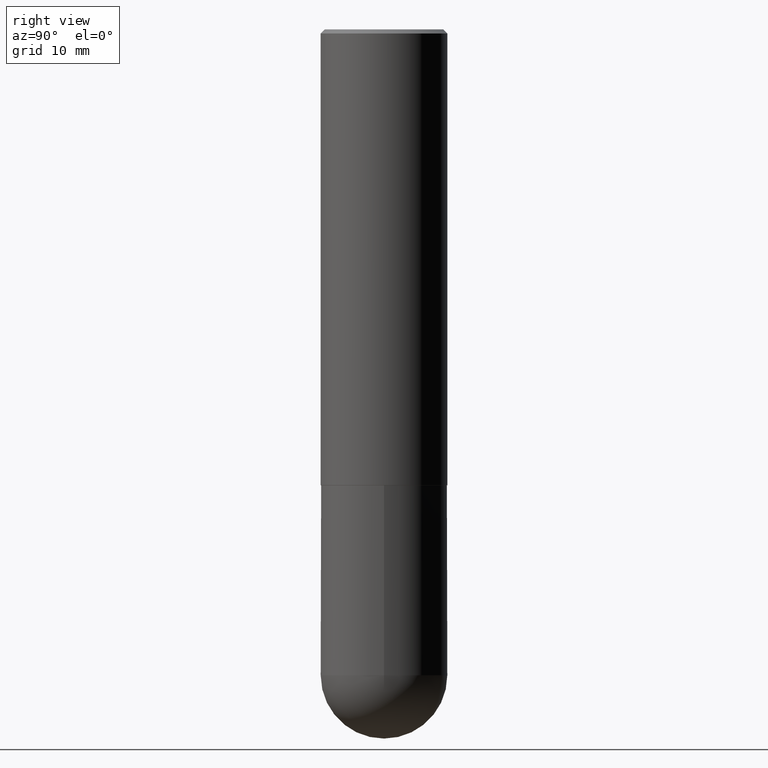
[diagram: clean part render]
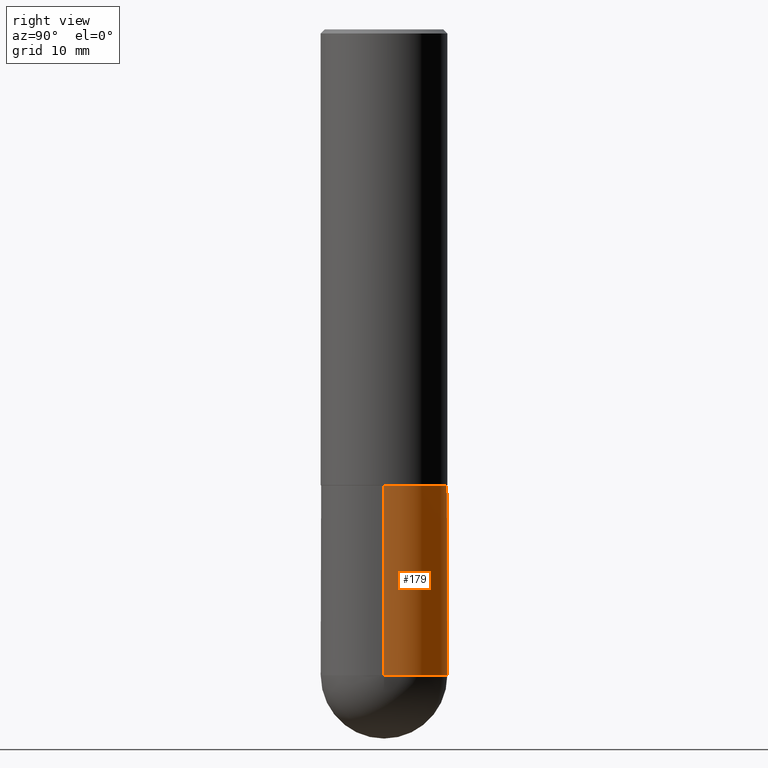
[diagram: same view with one face highlighted and labeled with its STEP entity id]
A machine part, right view. The second image highlights one B-rep face of the part: STEP entity #179.
In plain terms, the highlighted cylindrical surface (partial cylindrical patch) has radius 7.9375 mm, axis along (-0, 0, 1).
Its self-contained STEP definition (entity closure, byte-faithful):
#5 = EDGE_CURVE ( 'NONE', #220, #245, #201, .T. ) ;
#13 = AXIS2_PLACEMENT_3D ( 'NONE', #42, #79, #372 ) ;
#33 = DIRECTION ( 'NONE',  ( 1.000000000000000000, -6.982962677686269077E-15, 0.000000000000000000 ) ) ;
#40 = DIRECTION ( 'NONE',  ( -2.445468806185136877E-29, 3.491481338843145188E-15, 1.000000000000000000 ) ) ;
#42 = CARTESIAN_POINT ( 'NONE',  ( 0.000000000000000000, 0.000000000000000000, 0.000000000000000000 ) ) ;
#44 = LINE ( 'NONE', #180, #388 ) ;
#69 = CIRCLE ( 'NONE', #130, 0.3125000000000000000 ) ;
#72 = VERTEX_POINT ( 'NONE', #166 ) ;
#77 = CARTESIAN_POINT ( 'NONE',  ( 7.794931819715121781E-29, -1.112909676756252622E-14, -3.187500000000000000 ) ) ;
#79 = DIRECTION ( 'NONE',  ( -2.445468806185136597E-29, 3.491481338843145583E-15, 1.000000000000000000 ) ) ;
#81 = EDGE_LOOP ( 'NONE', ( #119, #394, #89, #272, #256 ) ) ;
#89 = ORIENTED_EDGE ( 'NONE', *, *, #285, .F. ) ;
#91 = VERTEX_POINT ( 'NONE', #306 ) ;
#117 = DIRECTION ( 'NONE',  ( -2.445468806185136597E-29, 3.491481338843145583E-15, 1.000000000000000000 ) ) ;
#119 = ORIENTED_EDGE ( 'NONE', *, *, #147, .T. ) ;
#124 = CIRCLE ( 'NONE', #397, 0.3125000000000000000 ) ;
#130 = AXIS2_PLACEMENT_3D ( 'NONE', #412, #286, #248 ) ;
#147 = EDGE_CURVE ( 'NONE', #245, #72, #124, .T. ) ;
#166 = CARTESIAN_POINT ( 'NONE',  ( -0.3125000000000000000, -7.272018840729489255E-15, -3.187500000000000000 ) ) ;
#168 = AXIS2_PLACEMENT_3D ( 'NONE', #381, #117, #33 ) ;
#173 = CYLINDRICAL_SURFACE ( 'NONE', #13, 0.3125000000000000000 ) ;
#179 = ADVANCED_FACE ( 'NONE', ( #401 ), #173, .T. ) ;
#180 = CARTESIAN_POINT ( 'NONE',  ( 0.3125000000000000000, -2.182175836776958347E-15, 1.523805242436230075E-29 ) ) ;
#189 = CARTESIAN_POINT ( 'NONE',  ( 2.182175836777035261E-15, 0.3124999999999887867, -3.187500000000000888 ) ) ;
#196 = EDGE_CURVE ( 'NONE', #220, #336, #44, .T. ) ;
#201 = CIRCLE ( 'NONE', #168, 0.3125000000000000000 ) ;
#220 = VERTEX_POINT ( 'NONE', #303 ) ;
#224 = EDGE_CURVE ( 'NONE', #72, #91, #273, .T. ) ;
#228 = VECTOR ( 'NONE', #40, 39.37007874015748143 ) ;
#242 = DIRECTION ( 'NONE',  ( -2.445468806185136597E-29, 3.491481338843145583E-15, 1.000000000000000000 ) ) ;
#244 = DIRECTION ( 'NONE',  ( 1.000000000000000000, -6.982962677686269077E-15, 0.000000000000000000 ) ) ;
#245 = VERTEX_POINT ( 'NONE', #189 ) ;
#248 = DIRECTION ( 'NONE',  ( 1.000000000000000000, -6.982962677686265133E-15, 0.000000000000000000 ) ) ;
#256 = ORIENTED_EDGE ( 'NONE', *, *, #5, .T. ) ;
#272 = ORIENTED_EDGE ( 'NONE', *, *, #196, .F. ) ;
#273 = LINE ( 'NONE', #395, #228 ) ;
#285 = EDGE_CURVE ( 'NONE', #336, #91, #69, .T. ) ;
#286 = DIRECTION ( 'NONE',  ( -2.445468806185136597E-29, 3.491481338843145583E-15, 1.000000000000000000 ) ) ;
#303 = CARTESIAN_POINT ( 'NONE',  ( 0.3125000000000000000, -1.167464072675676226E-14, -3.187500000000000000 ) ) ;
#306 = CARTESIAN_POINT ( 'NONE',  ( -0.3125000000000000000, -7.272018840729487678E-15, -2.249999999999999556 ) ) ;
#307 = DIRECTION ( 'NONE',  ( -2.445468806185136877E-29, 3.491481338843145188E-15, 1.000000000000000000 ) ) ;
#317 = CARTESIAN_POINT ( 'NONE',  ( 0.3125000000000000000, -1.003800884917403364E-14, -2.249999999999999556 ) ) ;
#336 = VERTEX_POINT ( 'NONE', #317 ) ;
#372 = DIRECTION ( 'NONE',  ( 1.000000000000000000, -6.982962677686266711E-15, 4.876176775795936353E-29 ) ) ;
#381 = CARTESIAN_POINT ( 'NONE',  ( 7.794931819715121781E-29, -1.112909676756252622E-14, -3.187500000000000000 ) ) ;
#388 = VECTOR ( 'NONE', #307, 39.37007874015748143 ) ;
#394 = ORIENTED_EDGE ( 'NONE', *, *, #224, .T. ) ;
#395 = CARTESIAN_POINT ( 'NONE',  ( -0.3125000000000000000, 2.220446049250313081E-15, -1.537167215704658232E-29 ) ) ;
#397 = AXIS2_PLACEMENT_3D ( 'NONE', #77, #242, #244 ) ;
#401 = FACE_OUTER_BOUND ( 'NONE', #81, .T. ) ;
#412 = CARTESIAN_POINT ( 'NONE',  ( 5.502304813916556222E-29, -7.855833012397075293E-15, -2.249999999999999556 ) ) ;